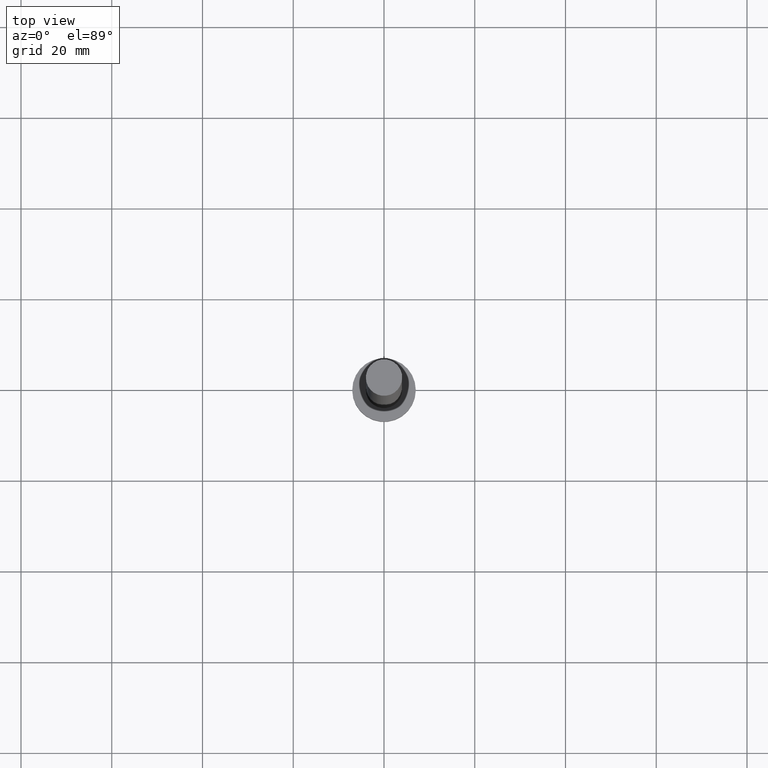
[diagram: clean part render]
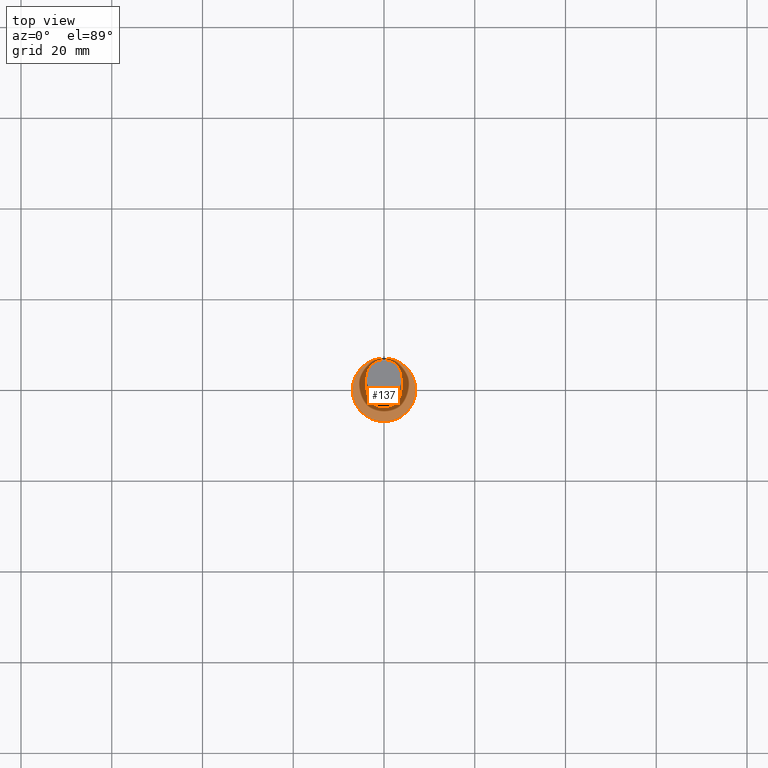
[diagram: same view with one face highlighted and labeled with its STEP entity id]
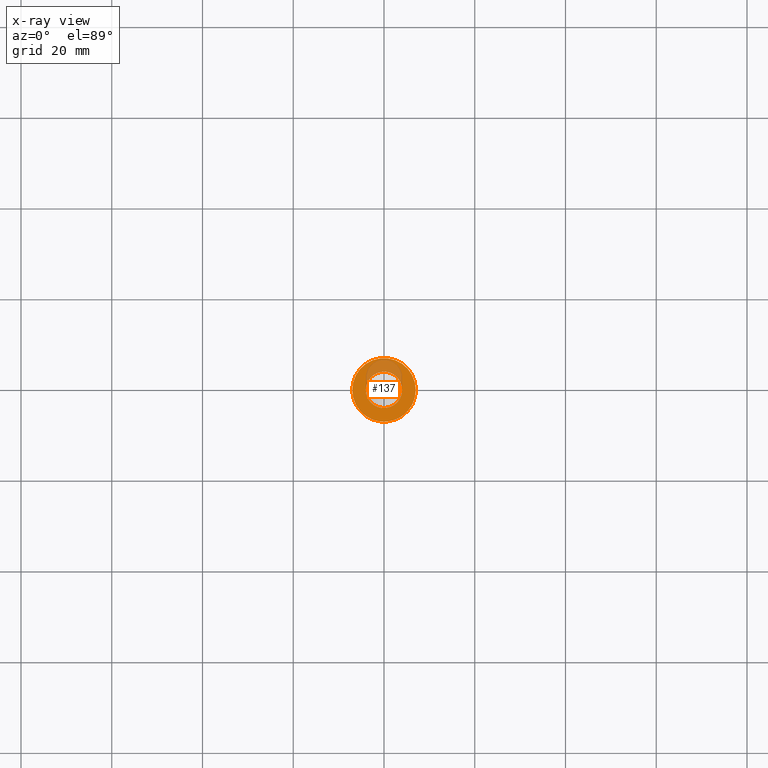
[diagram: x-ray of the same camera — body ghosted, the highlighted face saturated]
A machine part, top view. The second image highlights one B-rep face of the part: STEP entity #137.
The next image is the same camera in x-ray: the body ghosted, the highlighted face saturated — about 21% of this face is hidden behind the body in this view.
In plain terms, the highlighted planar face has unit normal (0, 0, 1).
Its self-contained STEP definition (entity closure, byte-faithful):
#3 = ORIENTED_EDGE ( 'NONE', *, *, #160, .F. ) ;
#6 = DIRECTION ( 'NONE',  ( 0.000000000000000000, 0.000000000000000000, 1.000000000000000000 ) ) ;
#11 = PLANE ( 'NONE',  #140 ) ;
#15 = CARTESIAN_POINT ( 'NONE',  ( -7.000000000000000000, 0.000000000000000000, 5.000000000000000000 ) ) ;
#18 = AXIS2_PLACEMENT_3D ( 'NONE', #164, #6, #91 ) ;
#19 = EDGE_CURVE ( 'NONE', #226, #199, #69, .T. ) ;
#43 = ORIENTED_EDGE ( 'NONE', *, *, #251, .T. ) ;
#45 = ORIENTED_EDGE ( 'NONE', *, *, #214, .T. ) ;
#49 = DIRECTION ( 'NONE',  ( 1.000000000000000000, 0.000000000000000000, -0.000000000000000000 ) ) ;
#50 = AXIS2_PLACEMENT_3D ( 'NONE', #147, #204, #118 ) ;
#54 = CARTESIAN_POINT ( 'NONE',  ( 0.000000000000000000, 0.000000000000000000, 5.000000000000000000 ) ) ;
#69 = CIRCLE ( 'NONE', #50, 4.000000000000000000 ) ;
#77 = DIRECTION ( 'NONE',  ( 1.000000000000000000, 0.000000000000000000, 0.000000000000000000 ) ) ;
#78 = FACE_BOUND ( 'NONE', #220, .T. ) ;
#91 = DIRECTION ( 'NONE',  ( 1.000000000000000000, 0.000000000000000000, 0.000000000000000000 ) ) ;
#96 = CARTESIAN_POINT ( 'NONE',  ( -4.000000000000000000, 0.000000000000000000, 5.000000000000000000 ) ) ;
#106 = EDGE_LOOP ( 'NONE', ( #45, #43 ) ) ;
#108 = AXIS2_PLACEMENT_3D ( 'NONE', #54, #250, #77 ) ;
#109 = VERTEX_POINT ( 'NONE', #15 ) ;
#117 = CARTESIAN_POINT ( 'NONE',  ( 0.000000000000000000, 0.000000000000000000, 5.000000000000000000 ) ) ;
#118 = DIRECTION ( 'NONE',  ( 1.000000000000000000, 0.000000000000000000, 0.000000000000000000 ) ) ;
#119 = FACE_OUTER_BOUND ( 'NONE', #106, .T. ) ;
#132 = DIRECTION ( 'NONE',  ( 0.000000000000000000, 0.000000000000000000, 1.000000000000000000 ) ) ;
#137 = ADVANCED_FACE ( 'NONE', ( #78, #119 ), #11, .T. ) ;
#140 = AXIS2_PLACEMENT_3D ( 'NONE', #230, #190, #49 ) ;
#141 = VERTEX_POINT ( 'NONE', #170 ) ;
#144 = AXIS2_PLACEMENT_3D ( 'NONE', #117, #132, #186 ) ;
#147 = CARTESIAN_POINT ( 'NONE',  ( 0.000000000000000000, 0.000000000000000000, 5.000000000000000000 ) ) ;
#160 = EDGE_CURVE ( 'NONE', #199, #226, #224, .T. ) ;
#164 = CARTESIAN_POINT ( 'NONE',  ( 0.000000000000000000, 0.000000000000000000, 5.000000000000000000 ) ) ;
#170 = CARTESIAN_POINT ( 'NONE',  ( 7.000000000000000000, 8.572527594031473190E-16, 5.000000000000000000 ) ) ;
#184 = CARTESIAN_POINT ( 'NONE',  ( 4.000000000000000000, 4.898587196589412829E-16, 5.000000000000000000 ) ) ;
#186 = DIRECTION ( 'NONE',  ( 1.000000000000000000, 0.000000000000000000, 0.000000000000000000 ) ) ;
#190 = DIRECTION ( 'NONE',  ( 0.000000000000000000, 0.000000000000000000, 1.000000000000000000 ) ) ;
#199 = VERTEX_POINT ( 'NONE', #96 ) ;
#204 = DIRECTION ( 'NONE',  ( 0.000000000000000000, 0.000000000000000000, 1.000000000000000000 ) ) ;
#214 = EDGE_CURVE ( 'NONE', #109, #141, #252, .T. ) ;
#220 = EDGE_LOOP ( 'NONE', ( #3, #225 ) ) ;
#224 = CIRCLE ( 'NONE', #108, 4.000000000000000000 ) ;
#225 = ORIENTED_EDGE ( 'NONE', *, *, #19, .F. ) ;
#226 = VERTEX_POINT ( 'NONE', #184 ) ;
#230 = CARTESIAN_POINT ( 'NONE',  ( 0.000000000000000000, 0.000000000000000000, 5.000000000000000000 ) ) ;
#249 = CIRCLE ( 'NONE', #18, 7.000000000000000000 ) ;
#250 = DIRECTION ( 'NONE',  ( 0.000000000000000000, 0.000000000000000000, 1.000000000000000000 ) ) ;
#251 = EDGE_CURVE ( 'NONE', #141, #109, #249, .T. ) ;
#252 = CIRCLE ( 'NONE', #144, 7.000000000000000000 ) ;